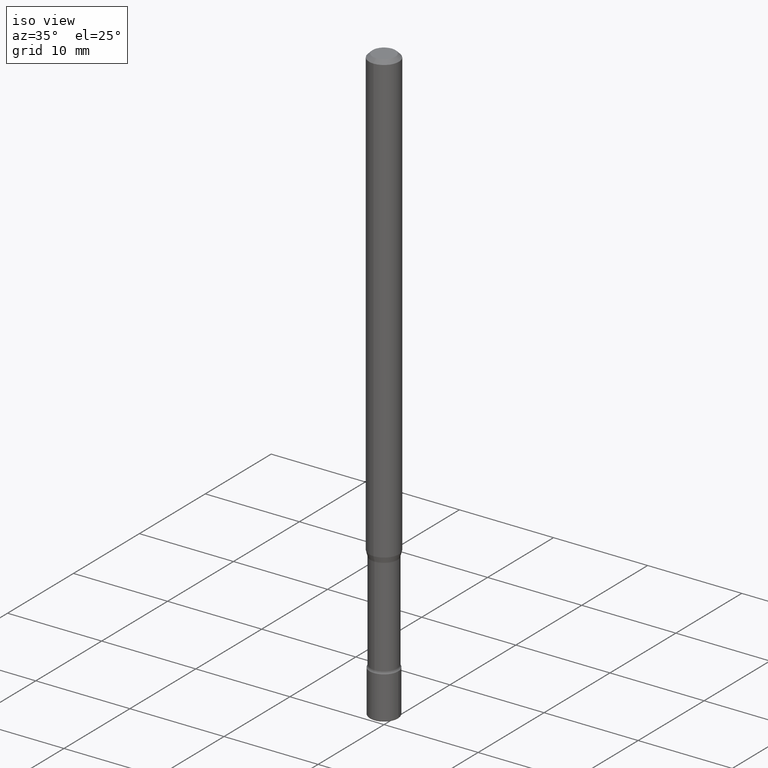
[diagram: clean part render]
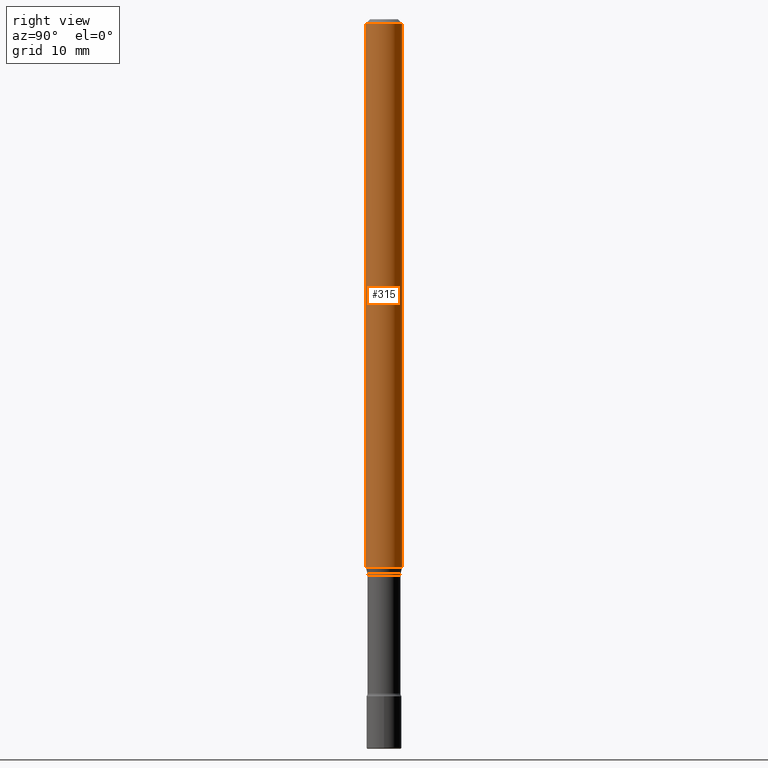
[diagram: tour spotlight — one face highlighted and labeled with its STEP entity id]
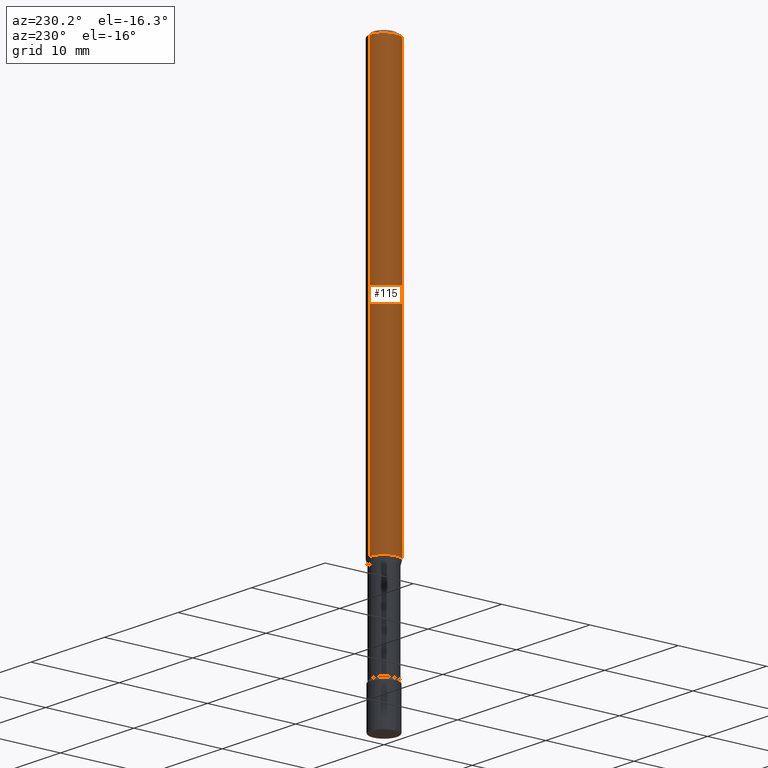
[diagram: tour spotlight — one face highlighted and labeled with its STEP entity id]
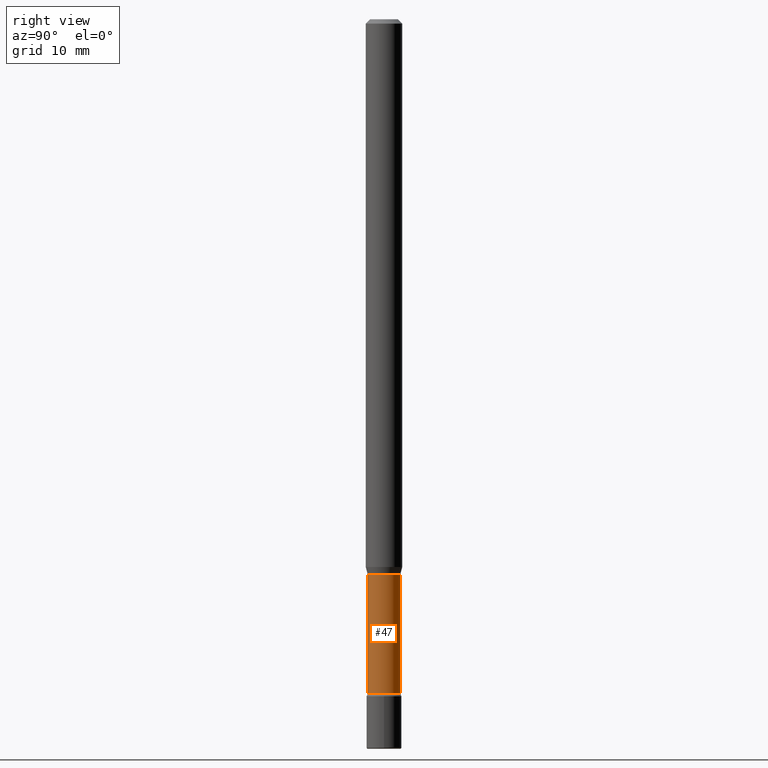
[diagram: tour spotlight — one face highlighted and labeled with its STEP entity id]
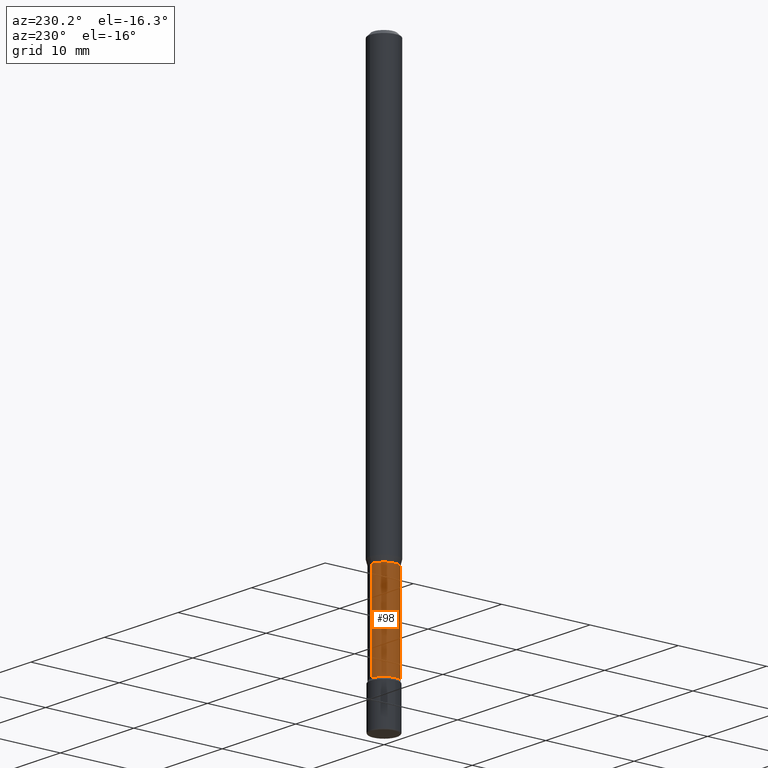
[diagram: tour spotlight — one face highlighted and labeled with its STEP entity id]
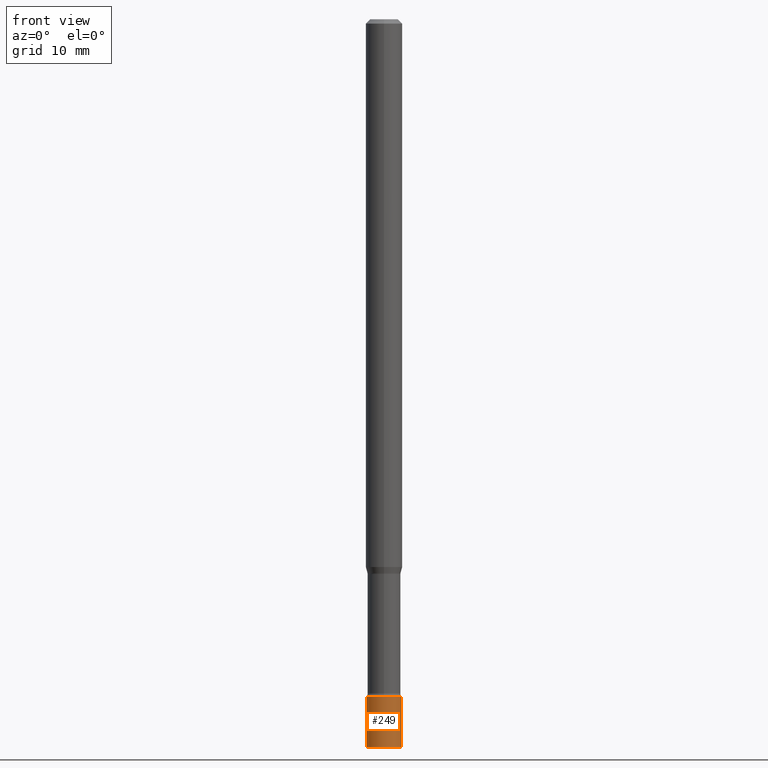
[diagram: tour spotlight — one face highlighted and labeled with its STEP entity id]
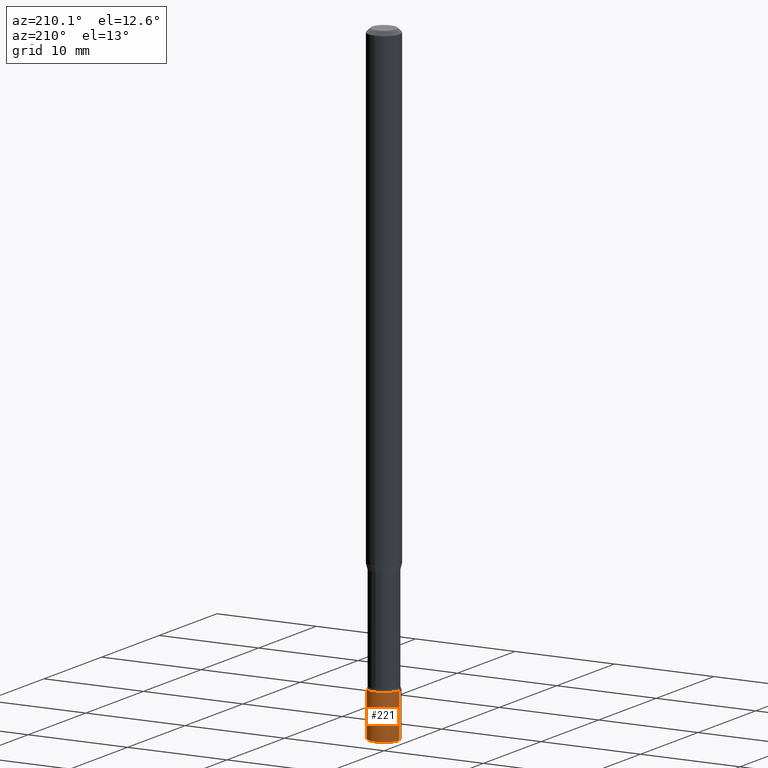
[diagram: tour spotlight — one face highlighted and labeled with its STEP entity id]
A machine part: a face-by-face anatomy tour. The part has 20 B-rep faces; the first image is the clean iso view, then the 6 largest visible faces are spotlighted one at a time (largest first), each with its STEP entity span.

Face 1 — right view, entity #315. In plain terms, the highlighted cylindrical surface (edge-blend (fillet) strip) has radius 1.5875 mm, axis along (-0, 0, 1).
Definition (entity closure, byte-faithful):
#16 = VERTEX_POINT ( 'NONE', #220 ) ;
#17 = DIRECTION ( 'NONE',  ( -2.445374119236681714E-29, 3.491616935942579411E-15, 1.000000000000000000 ) ) ;
#79 = DIRECTION ( 'NONE',  ( -2.445374119236681994E-29, 3.491616935942579411E-15, 1.000000000000000000 ) ) ;
#84 = AXIS2_PLACEMENT_3D ( 'NONE', #526, #290, #259 ) ;
#87 = ORIENTED_EDGE ( 'NONE', *, *, #383, .T. ) ;
#133 = EDGE_CURVE ( 'NONE', #16, #507, #299, .T. ) ;
#138 = CARTESIAN_POINT ( 'NONE',  ( 4.440892098501085673E-16, 0.06249999999999347050, -1.877234490073830253 ) ) ;
#156 = ORIENTED_EDGE ( 'NONE', *, *, #444, .F. ) ;
#173 = CARTESIAN_POINT ( 'NONE',  ( 4.440892098501086659E-16, 0.06249999999999993755, -0.01500000000000024578 ) ) ;
#210 = CYLINDRICAL_SURFACE ( 'NONE', #84, 0.06250000000000000000 ) ;
#214 = CARTESIAN_POINT ( 'NONE',  ( -4.364351673553456197E-16, -0.06250000000000653644, -1.877234490073829587 ) ) ;
#220 = CARTESIAN_POINT ( 'NONE',  ( -4.364351673553912750E-16, -0.06250000000000005551, -0.01499999999999981036 ) ) ;
#229 = VERTEX_POINT ( 'NONE', #214 ) ;
#239 = EDGE_LOOP ( 'NONE', ( #341, #87, #494, #156 ) ) ;
#259 = DIRECTION ( 'NONE',  ( -6.982962677686265922E-15, -1.000000000000000000, 3.491616935942578228E-15 ) ) ;
#261 = VECTOR ( 'NONE', #445, 39.37007874015748143 ) ;
#290 = DIRECTION ( 'NONE',  ( -2.445374119236681714E-29, 3.491616935942579411E-15, 1.000000000000000000 ) ) ;
#299 = CIRCLE ( 'NONE', #447, 0.06250000000000000000 ) ;
#310 = LINE ( 'NONE', #390, #389 ) ;
#315 = ADVANCED_FACE ( 'NONE', ( #339 ), #210, .T. ) ;
#328 = DIRECTION ( 'NONE',  ( -6.982962677686265922E-15, -1.000000000000000000, 3.483106191921935554E-15 ) ) ;
#339 = FACE_OUTER_BOUND ( 'NONE', #239, .T. ) ;
#341 = ORIENTED_EDGE ( 'NONE', *, *, #565, .T. ) ;
#382 = CIRCLE ( 'NONE', #506, 0.06250000000000000000 ) ;
#383 = EDGE_CURVE ( 'NONE', #570, #507, #449, .T. ) ;
#389 = VECTOR ( 'NONE', #79, 39.37007874015748143 ) ;
#390 = CARTESIAN_POINT ( 'NONE',  ( -4.364351673553916201E-16, -0.06250000000000000000, 6.962994573876572271E-16 ) ) ;
#444 = EDGE_CURVE ( 'NONE', #229, #16, #310, .T. ) ;
#445 = DIRECTION ( 'NONE',  ( -2.445374119236681994E-29, 3.491616935942579411E-15, 1.000000000000000000 ) ) ;
#447 = AXIS2_PLACEMENT_3D ( 'NONE', #458, #17, #328 ) ;
#449 = LINE ( 'NONE', #569, #261 ) ;
#458 = CARTESIAN_POINT ( 'NONE',  ( 3.668061178855029262E-31, -5.237425403913879570E-17, -0.01500000000000002720 ) ) ;
#460 = DIRECTION ( 'NONE',  ( -6.982962677686265922E-15, -1.000000000000000000, 4.370956789862821150E-15 ) ) ;
#466 = DIRECTION ( 'NONE',  ( -2.445374119236681714E-29, 3.491616935942579411E-15, 1.000000000000000000 ) ) ;
#494 = ORIENTED_EDGE ( 'NONE', *, *, #133, .F. ) ;
#506 = AXIS2_PLACEMENT_3D ( 'NONE', #509, #466, #460 ) ;
#507 = VERTEX_POINT ( 'NONE', #173 ) ;
#509 = CARTESIAN_POINT ( 'NONE',  ( 4.590540637765013865E-29, -6.554583738277316538E-15, -1.877234490073830031 ) ) ;
#526 = CARTESIAN_POINT ( 'NONE',  ( -1.169113584055446105E-44, 1.669184350826100908E-30, 4.780733988912460139E-16 ) ) ;
#565 = EDGE_CURVE ( 'NONE', #229, #570, #382, .T. ) ;
#569 = CARTESIAN_POINT ( 'NONE',  ( 4.440892098500625669E-16, 0.06250000000000000000, 2.598473403948348500E-16 ) ) ;
#570 = VERTEX_POINT ( 'NONE', #138 ) ;

Face 2 — auxiliary view, entity #115. In plain terms, the highlighted cylindrical surface (edge-blend (fillet) strip) has radius 1.5875 mm, axis along (-0, 0, 1).
Definition (entity closure, byte-faithful):
#4 = ORIENTED_EDGE ( 'NONE', *, *, #148, .T. ) ;
#6 = ORIENTED_EDGE ( 'NONE', *, *, #444, .T. ) ;
#13 = CARTESIAN_POINT ( 'NONE',  ( -1.169113584055446105E-44, 1.669184350826100908E-30, 4.780733988912460139E-16 ) ) ;
#16 = VERTEX_POINT ( 'NONE', #220 ) ;
#52 = DIRECTION ( 'NONE',  ( -6.982962677686265922E-15, -1.000000000000000000, 3.483106191921935554E-15 ) ) ;
#79 = DIRECTION ( 'NONE',  ( -2.445374119236681994E-29, 3.491616935942579411E-15, 1.000000000000000000 ) ) ;
#99 = DIRECTION ( 'NONE',  ( -2.445374119236681714E-29, 3.491616935942579411E-15, 1.000000000000000000 ) ) ;
#115 = ADVANCED_FACE ( 'NONE', ( #412 ), #149, .T. ) ;
#138 = CARTESIAN_POINT ( 'NONE',  ( 4.440892098501085673E-16, 0.06249999999999347050, -1.877234490073830253 ) ) ;
#148 = EDGE_CURVE ( 'NONE', #570, #229, #256, .T. ) ;
#149 = CYLINDRICAL_SURFACE ( 'NONE', #396, 0.06250000000000000000 ) ;
#152 = AXIS2_PLACEMENT_3D ( 'NONE', #198, #454, #52 ) ;
#173 = CARTESIAN_POINT ( 'NONE',  ( 4.440892098501086659E-16, 0.06249999999999993755, -0.01500000000000024578 ) ) ;
#187 = EDGE_CURVE ( 'NONE', #507, #16, #397, .T. ) ;
#188 = ORIENTED_EDGE ( 'NONE', *, *, #187, .F. ) ;
#198 = CARTESIAN_POINT ( 'NONE',  ( 3.668061178855029262E-31, -5.237425403913879570E-17, -0.01500000000000002720 ) ) ;
#201 = DIRECTION ( 'NONE',  ( -6.982962677686265922E-15, -1.000000000000000000, 3.491616935942578228E-15 ) ) ;
#204 = CARTESIAN_POINT ( 'NONE',  ( 4.590540637765013865E-29, -6.554583738277316538E-15, -1.877234490073830031 ) ) ;
#214 = CARTESIAN_POINT ( 'NONE',  ( -4.364351673553456197E-16, -0.06250000000000653644, -1.877234490073829587 ) ) ;
#220 = CARTESIAN_POINT ( 'NONE',  ( -4.364351673553912750E-16, -0.06250000000000005551, -0.01499999999999981036 ) ) ;
#229 = VERTEX_POINT ( 'NONE', #214 ) ;
#256 = CIRCLE ( 'NONE', #572, 0.06250000000000000000 ) ;
#261 = VECTOR ( 'NONE', #445, 39.37007874015748143 ) ;
#310 = LINE ( 'NONE', #390, #389 ) ;
#376 = DIRECTION ( 'NONE',  ( -2.445374119236681714E-29, 3.491616935942579411E-15, 1.000000000000000000 ) ) ;
#383 = EDGE_CURVE ( 'NONE', #570, #507, #449, .T. ) ;
#385 = EDGE_LOOP ( 'NONE', ( #401, #4, #6, #188 ) ) ;
#389 = VECTOR ( 'NONE', #79, 39.37007874015748143 ) ;
#390 = CARTESIAN_POINT ( 'NONE',  ( -4.364351673553916201E-16, -0.06250000000000000000, 6.962994573876572271E-16 ) ) ;
#396 = AXIS2_PLACEMENT_3D ( 'NONE', #13, #99, #201 ) ;
#397 = CIRCLE ( 'NONE', #152, 0.06250000000000000000 ) ;
#401 = ORIENTED_EDGE ( 'NONE', *, *, #383, .F. ) ;
#412 = FACE_OUTER_BOUND ( 'NONE', #385, .T. ) ;
#444 = EDGE_CURVE ( 'NONE', #229, #16, #310, .T. ) ;
#445 = DIRECTION ( 'NONE',  ( -2.445374119236681994E-29, 3.491616935942579411E-15, 1.000000000000000000 ) ) ;
#449 = LINE ( 'NONE', #569, #261 ) ;
#454 = DIRECTION ( 'NONE',  ( -2.445374119236681714E-29, 3.491616935942579411E-15, 1.000000000000000000 ) ) ;
#507 = VERTEX_POINT ( 'NONE', #173 ) ;
#549 = DIRECTION ( 'NONE',  ( -6.982962677686265922E-15, -1.000000000000000000, 4.370956789862821150E-15 ) ) ;
#569 = CARTESIAN_POINT ( 'NONE',  ( 4.440892098500625669E-16, 0.06250000000000000000, 2.598473403948348500E-16 ) ) ;
#570 = VERTEX_POINT ( 'NONE', #138 ) ;
#572 = AXIS2_PLACEMENT_3D ( 'NONE', #204, #376, #549 ) ;

Face 3 — right view, entity #47. In plain terms, the highlighted cylindrical surface (edge-blend (fillet) strip) has radius 1.4326 mm, axis along (-0, 0, 1).
Definition (entity closure, byte-faithful):
#2 = DIRECTION ( 'NONE',  ( -6.982962677686265922E-15, -1.000000000000000000, 4.843702116425999219E-15 ) ) ;
#35 = DIRECTION ( 'NONE',  ( -2.445374119236681714E-29, 3.491616935942579411E-15, 1.000000000000000000 ) ) ;
#41 = CARTESIAN_POINT ( 'NONE',  ( -3.938390950214588125E-16, -0.05640000000000663927, -1.901974787463810879 ) ) ;
#47 = ADVANCED_FACE ( 'NONE', ( #154 ), #415, .T. ) ;
#56 = VECTOR ( 'NONE', #186, 39.37007874015748143 ) ;
#60 = CARTESIAN_POINT ( 'NONE',  ( 5.649428380719043834E-29, -8.066512055288535170E-15, -2.310251153914436806 ) ) ;
#63 = EDGE_CURVE ( 'NONE', #399, #402, #361, .T. ) ;
#64 = CARTESIAN_POINT ( 'NONE',  ( -1.169113584055446105E-44, 1.669184350826100908E-30, 4.780733988912460139E-16 ) ) ;
#86 = CARTESIAN_POINT ( 'NONE',  ( 4.007461029686965452E-16, 0.05640000000000001262, 2.811462037040845346E-16 ) ) ;
#124 = DIRECTION ( 'NONE',  ( -2.445374119236681994E-29, 3.491616935942579411E-15, 1.000000000000000000 ) ) ;
#142 = ORIENTED_EDGE ( 'NONE', *, *, #484, .F. ) ;
#154 = FACE_OUTER_BOUND ( 'NONE', #230, .T. ) ;
#186 = DIRECTION ( 'NONE',  ( -2.445374119236681994E-29, 3.491616935942579411E-15, 1.000000000000000000 ) ) ;
#218 = AXIS2_PLACEMENT_3D ( 'NONE', #562, #35, #2 ) ;
#230 = EDGE_LOOP ( 'NONE', ( #492, #530, #472, #142 ) ) ;
#282 = VECTOR ( 'NONE', #124, 39.37007874015748143 ) ;
#303 = CARTESIAN_POINT ( 'NONE',  ( 4.135358722124349706E-16, 0.05639999999999196351, -2.310251153914437250 ) ) ;
#332 = DIRECTION ( 'NONE',  ( -2.445374119236681714E-29, 3.491616935942579411E-15, 1.000000000000000000 ) ) ;
#336 = AXIS2_PLACEMENT_3D ( 'NONE', #60, #547, #462 ) ;
#360 = VERTEX_POINT ( 'NONE', #523 ) ;
#361 = CIRCLE ( 'NONE', #336, 0.05640000000000002650 ) ;
#388 = CARTESIAN_POINT ( 'NONE',  ( -3.938390950214490997E-16, -0.05640000000000809643, -2.310251153914436806 ) ) ;
#399 = VERTEX_POINT ( 'NONE', #388 ) ;
#402 = VERTEX_POINT ( 'NONE', #303 ) ;
#415 = CYLINDRICAL_SURFACE ( 'NONE', #551, 0.05640000000000001262 ) ;
#419 = VERTEX_POINT ( 'NONE', #41 ) ;
#432 = EDGE_CURVE ( 'NONE', #419, #360, #448, .T. ) ;
#441 = LINE ( 'NONE', #495, #282 ) ;
#448 = CIRCLE ( 'NONE', #218, 0.05639999999999999181 ) ;
#462 = DIRECTION ( 'NONE',  ( -6.982962677686265922E-15, -1.000000000000000000, 4.843702116425996063E-15 ) ) ;
#472 = ORIENTED_EDGE ( 'NONE', *, *, #432, .F. ) ;
#484 = EDGE_CURVE ( 'NONE', #399, #419, #441, .T. ) ;
#490 = LINE ( 'NONE', #86, #56 ) ;
#492 = ORIENTED_EDGE ( 'NONE', *, *, #63, .T. ) ;
#495 = CARTESIAN_POINT ( 'NONE',  ( -3.938390950215054539E-16, -0.05640000000000001262, 6.750005940784075426E-16 ) ) ;
#523 = CARTESIAN_POINT ( 'NONE',  ( 4.007461029687529981E-16, 0.05639999999999335129, -1.901974787463811545 ) ) ;
#530 = ORIENTED_EDGE ( 'NONE', *, *, #541, .T. ) ;
#541 = EDGE_CURVE ( 'NONE', #402, #360, #490, .T. ) ;
#545 = DIRECTION ( 'NONE',  ( -6.982962677686265133E-15, -1.000000000000000000, 3.491616935942579411E-15 ) ) ;
#547 = DIRECTION ( 'NONE',  ( -2.445374119236681714E-29, 3.491616935942579411E-15, 1.000000000000000000 ) ) ;
#551 = AXIS2_PLACEMENT_3D ( 'NONE', #64, #332, #545 ) ;
#562 = CARTESIAN_POINT ( 'NONE',  ( 4.651039920704693219E-29, -6.640967379644431194E-15, -1.901974787463811323 ) ) ;

Face 4 — auxiliary view, entity #98. In plain terms, the highlighted cylindrical surface (edge-blend (fillet) strip) has radius 1.4326 mm, axis along (-0, 0, 1).
Definition (entity closure, byte-faithful):
#25 = DIRECTION ( 'NONE',  ( -2.445374119236681714E-29, 3.491616935942579411E-15, 1.000000000000000000 ) ) ;
#41 = CARTESIAN_POINT ( 'NONE',  ( -3.938390950214588125E-16, -0.05640000000000663927, -1.901974787463810879 ) ) ;
#56 = VECTOR ( 'NONE', #186, 39.37007874015748143 ) ;
#66 = AXIS2_PLACEMENT_3D ( 'NONE', #183, #171, #307 ) ;
#86 = CARTESIAN_POINT ( 'NONE',  ( 4.007461029686965452E-16, 0.05640000000000001262, 2.811462037040845346E-16 ) ) ;
#96 = ORIENTED_EDGE ( 'NONE', *, *, #484, .T. ) ;
#98 = ADVANCED_FACE ( 'NONE', ( #409 ), #511, .T. ) ;
#124 = DIRECTION ( 'NONE',  ( -2.445374119236681994E-29, 3.491616935942579411E-15, 1.000000000000000000 ) ) ;
#129 = ORIENTED_EDGE ( 'NONE', *, *, #463, .F. ) ;
#171 = DIRECTION ( 'NONE',  ( -2.445374119236681714E-29, 3.491616935942579411E-15, 1.000000000000000000 ) ) ;
#183 = CARTESIAN_POINT ( 'NONE',  ( 4.651039920704693219E-29, -6.640967379644431194E-15, -1.901974787463811323 ) ) ;
#186 = DIRECTION ( 'NONE',  ( -2.445374119236681994E-29, 3.491616935942579411E-15, 1.000000000000000000 ) ) ;
#191 = DIRECTION ( 'NONE',  ( -6.982962677686265133E-15, -1.000000000000000000, 3.491616935942579411E-15 ) ) ;
#238 = CIRCLE ( 'NONE', #66, 0.05639999999999999181 ) ;
#255 = AXIS2_PLACEMENT_3D ( 'NONE', #514, #25, #191 ) ;
#271 = AXIS2_PLACEMENT_3D ( 'NONE', #355, #346, #538 ) ;
#278 = ORIENTED_EDGE ( 'NONE', *, *, #469, .T. ) ;
#282 = VECTOR ( 'NONE', #124, 39.37007874015748143 ) ;
#303 = CARTESIAN_POINT ( 'NONE',  ( 4.135358722124349706E-16, 0.05639999999999196351, -2.310251153914437250 ) ) ;
#307 = DIRECTION ( 'NONE',  ( -6.982962677686265922E-15, -1.000000000000000000, 4.843702116425999219E-15 ) ) ;
#346 = DIRECTION ( 'NONE',  ( -2.445374119236681714E-29, 3.491616935942579411E-15, 1.000000000000000000 ) ) ;
#355 = CARTESIAN_POINT ( 'NONE',  ( 5.649428380719043834E-29, -8.066512055288535170E-15, -2.310251153914436806 ) ) ;
#360 = VERTEX_POINT ( 'NONE', #523 ) ;
#377 = EDGE_LOOP ( 'NONE', ( #543, #278, #96, #129 ) ) ;
#388 = CARTESIAN_POINT ( 'NONE',  ( -3.938390950214490997E-16, -0.05640000000000809643, -2.310251153914436806 ) ) ;
#399 = VERTEX_POINT ( 'NONE', #388 ) ;
#402 = VERTEX_POINT ( 'NONE', #303 ) ;
#409 = FACE_OUTER_BOUND ( 'NONE', #377, .T. ) ;
#419 = VERTEX_POINT ( 'NONE', #41 ) ;
#441 = LINE ( 'NONE', #495, #282 ) ;
#463 = EDGE_CURVE ( 'NONE', #360, #419, #238, .T. ) ;
#469 = EDGE_CURVE ( 'NONE', #402, #399, #527, .T. ) ;
#484 = EDGE_CURVE ( 'NONE', #399, #419, #441, .T. ) ;
#490 = LINE ( 'NONE', #86, #56 ) ;
#495 = CARTESIAN_POINT ( 'NONE',  ( -3.938390950215054539E-16, -0.05640000000000001262, 6.750005940784075426E-16 ) ) ;
#511 = CYLINDRICAL_SURFACE ( 'NONE', #255, 0.05640000000000001262 ) ;
#514 = CARTESIAN_POINT ( 'NONE',  ( -1.169113584055446105E-44, 1.669184350826100908E-30, 4.780733988912460139E-16 ) ) ;
#523 = CARTESIAN_POINT ( 'NONE',  ( 4.007461029687529981E-16, 0.05639999999999335129, -1.901974787463811545 ) ) ;
#527 = CIRCLE ( 'NONE', #271, 0.05640000000000002650 ) ;
#538 = DIRECTION ( 'NONE',  ( -6.982962677686265922E-15, -1.000000000000000000, 4.843702116425996063E-15 ) ) ;
#541 = EDGE_CURVE ( 'NONE', #402, #360, #490, .T. ) ;
#543 = ORIENTED_EDGE ( 'NONE', *, *, #541, .F. ) ;

Face 5 — front view, entity #249. In plain terms, the highlighted cylindrical surface (edge-blend (fillet) strip) has radius 1.524 mm, axis along (-0, 0, 1).
Definition (entity closure, byte-faithful):
#3 = EDGE_LOOP ( 'NONE', ( #312, #232, #455, #241 ) ) ;
#31 = AXIS2_PLACEMENT_3D ( 'NONE', #326, #500, #195 ) ;
#53 = VERTEX_POINT ( 'NONE', #371 ) ;
#78 = EDGE_CURVE ( 'NONE', #137, #53, #192, .T. ) ;
#107 = CARTESIAN_POINT ( 'NONE',  ( -0.05999999999999988676, -8.284920298957589417E-15, -2.495000000000000107 ) ) ;
#110 = CARTESIAN_POINT ( 'NONE',  ( -0.06000000000000001166, 4.263256414560601944E-16, -2.951361054152943763E-30 ) ) ;
#113 = CARTESIAN_POINT ( 'NONE',  ( 0.000000000000000000, 0.000000000000000000, 0.000000000000000000 ) ) ;
#118 = FACE_OUTER_BOUND ( 'NONE', #3, .T. ) ;
#130 = AXIS2_PLACEMENT_3D ( 'NONE', #113, #258, #213 ) ;
#137 = VERTEX_POINT ( 'NONE', #107 ) ;
#160 = EDGE_CURVE ( 'NONE', #227, #496, #418, .T. ) ;
#192 = CIRCLE ( 'NONE', #407, 0.06000000000000001166 ) ;
#195 = DIRECTION ( 'NONE',  ( 1.000000000000000000, -6.982962677686268288E-15, 0.000000000000000000 ) ) ;
#213 = DIRECTION ( 'NONE',  ( 1.000000000000000000, -6.982962677686266711E-15, 4.876176775795935793E-29 ) ) ;
#219 = CARTESIAN_POINT ( 'NONE',  ( 0.06000000000000001166, -4.189777606611760914E-16, 2.925706065477562106E-30 ) ) ;
#227 = VERTEX_POINT ( 'NONE', #521 ) ;
#232 = ORIENTED_EDGE ( 'NONE', *, *, #78, .T. ) ;
#241 = ORIENTED_EDGE ( 'NONE', *, *, #160, .F. ) ;
#242 = EDGE_CURVE ( 'NONE', #137, #227, #301, .T. ) ;
#246 = DIRECTION ( 'NONE',  ( 1.000000000000000000, -6.982962677686266711E-15, 0.000000000000000000 ) ) ;
#249 = ADVANCED_FACE ( 'NONE', ( #118 ), #479, .T. ) ;
#258 = DIRECTION ( 'NONE',  ( -2.445468806185136597E-29, 3.491481338843145583E-15, 1.000000000000000000 ) ) ;
#301 = LINE ( 'NONE', #110, #542 ) ;
#312 = ORIENTED_EDGE ( 'NONE', *, *, #242, .F. ) ;
#326 = CARTESIAN_POINT ( 'NONE',  ( 5.673487630349517039E-29, -8.100236706116098414E-15, -2.320000000000000284 ) ) ;
#348 = LINE ( 'NONE', #219, #438 ) ;
#371 = CARTESIAN_POINT ( 'NONE',  ( 0.05999999999999988676, -9.130223701074824963E-15, -2.495000000000000107 ) ) ;
#407 = AXIS2_PLACEMENT_3D ( 'NONE', #471, #505, #246 ) ;
#418 = CIRCLE ( 'NONE', #31, 0.05999999999999999778 ) ;
#438 = VECTOR ( 'NONE', #531, 39.37007874015748143 ) ;
#455 = ORIENTED_EDGE ( 'NONE', *, *, #518, .T. ) ;
#471 = CARTESIAN_POINT ( 'NONE',  ( 6.101444671431915719E-29, -8.711245940413648329E-15, -2.495000000000000107 ) ) ;
#479 = CYLINDRICAL_SURFACE ( 'NONE', #130, 0.06000000000000001166 ) ;
#485 = CARTESIAN_POINT ( 'NONE',  ( 0.05999999999999999778, -8.519214466777275048E-15, -2.320000000000000284 ) ) ;
#496 = VERTEX_POINT ( 'NONE', #485 ) ;
#500 = DIRECTION ( 'NONE',  ( -2.445468806185136597E-29, 3.491481338843145583E-15, 1.000000000000000000 ) ) ;
#505 = DIRECTION ( 'NONE',  ( -2.445468806185136597E-29, 3.491481338843145583E-15, 1.000000000000000000 ) ) ;
#518 = EDGE_CURVE ( 'NONE', #53, #496, #348, .T. ) ;
#521 = CARTESIAN_POINT ( 'NONE',  ( -0.05999999999999999778, -7.979415681808812882E-15, -2.320000000000000284 ) ) ;
#524 = DIRECTION ( 'NONE',  ( -2.445468806185136877E-29, 3.491481338843145188E-15, 1.000000000000000000 ) ) ;
#531 = DIRECTION ( 'NONE',  ( -2.445468806185136877E-29, 3.491481338843145188E-15, 1.000000000000000000 ) ) ;
#542 = VECTOR ( 'NONE', #524, 39.37007874015748143 ) ;

Face 6 — auxiliary view, entity #221. In plain terms, the highlighted cylindrical surface (edge-blend (fillet) strip) has radius 1.524 mm, axis along (-0, 0, 1).
Definition (entity closure, byte-faithful):
#9 = AXIS2_PLACEMENT_3D ( 'NONE', #486, #393, #175 ) ;
#24 = CIRCLE ( 'NONE', #9, 0.06000000000000001166 ) ;
#30 = CYLINDRICAL_SURFACE ( 'NONE', #362, 0.06000000000000001166 ) ;
#34 = DIRECTION ( 'NONE',  ( 1.000000000000000000, -6.982962677686266711E-15, 4.876176775795935793E-29 ) ) ;
#46 = AXIS2_PLACEMENT_3D ( 'NONE', #135, #48, #353 ) ;
#48 = DIRECTION ( 'NONE',  ( -2.445468806185136597E-29, 3.491481338843145583E-15, 1.000000000000000000 ) ) ;
#53 = VERTEX_POINT ( 'NONE', #371 ) ;
#61 = EDGE_LOOP ( 'NONE', ( #450, #540, #394, #69 ) ) ;
#69 = ORIENTED_EDGE ( 'NONE', *, *, #518, .F. ) ;
#107 = CARTESIAN_POINT ( 'NONE',  ( -0.05999999999999988676, -8.284920298957589417E-15, -2.495000000000000107 ) ) ;
#110 = CARTESIAN_POINT ( 'NONE',  ( -0.06000000000000001166, 4.263256414560601944E-16, -2.951361054152943763E-30 ) ) ;
#135 = CARTESIAN_POINT ( 'NONE',  ( 5.673487630349517039E-29, -8.100236706116098414E-15, -2.320000000000000284 ) ) ;
#137 = VERTEX_POINT ( 'NONE', #107 ) ;
#165 = DIRECTION ( 'NONE',  ( -2.445468806185136597E-29, 3.491481338843145583E-15, 1.000000000000000000 ) ) ;
#175 = DIRECTION ( 'NONE',  ( 1.000000000000000000, -6.982962677686266711E-15, 0.000000000000000000 ) ) ;
#219 = CARTESIAN_POINT ( 'NONE',  ( 0.06000000000000001166, -4.189777606611760914E-16, 2.925706065477562106E-30 ) ) ;
#221 = ADVANCED_FACE ( 'NONE', ( #483 ), #30, .T. ) ;
#227 = VERTEX_POINT ( 'NONE', #521 ) ;
#242 = EDGE_CURVE ( 'NONE', #137, #227, #301, .T. ) ;
#301 = LINE ( 'NONE', #110, #542 ) ;
#318 = CIRCLE ( 'NONE', #46, 0.05999999999999999778 ) ;
#348 = LINE ( 'NONE', #219, #438 ) ;
#353 = DIRECTION ( 'NONE',  ( 1.000000000000000000, -6.982962677686268288E-15, 0.000000000000000000 ) ) ;
#362 = AXIS2_PLACEMENT_3D ( 'NONE', #559, #165, #34 ) ;
#371 = CARTESIAN_POINT ( 'NONE',  ( 0.05999999999999988676, -9.130223701074824963E-15, -2.495000000000000107 ) ) ;
#393 = DIRECTION ( 'NONE',  ( -2.445468806185136597E-29, 3.491481338843145583E-15, 1.000000000000000000 ) ) ;
#394 = ORIENTED_EDGE ( 'NONE', *, *, #404, .F. ) ;
#404 = EDGE_CURVE ( 'NONE', #496, #227, #318, .T. ) ;
#438 = VECTOR ( 'NONE', #531, 39.37007874015748143 ) ;
#450 = ORIENTED_EDGE ( 'NONE', *, *, #451, .T. ) ;
#451 = EDGE_CURVE ( 'NONE', #53, #137, #24, .T. ) ;
#483 = FACE_OUTER_BOUND ( 'NONE', #61, .T. ) ;
#485 = CARTESIAN_POINT ( 'NONE',  ( 0.05999999999999999778, -8.519214466777275048E-15, -2.320000000000000284 ) ) ;
#486 = CARTESIAN_POINT ( 'NONE',  ( 6.101444671431915719E-29, -8.711245940413648329E-15, -2.495000000000000107 ) ) ;
#496 = VERTEX_POINT ( 'NONE', #485 ) ;
#518 = EDGE_CURVE ( 'NONE', #53, #496, #348, .T. ) ;
#521 = CARTESIAN_POINT ( 'NONE',  ( -0.05999999999999999778, -7.979415681808812882E-15, -2.320000000000000284 ) ) ;
#524 = DIRECTION ( 'NONE',  ( -2.445468806185136877E-29, 3.491481338843145188E-15, 1.000000000000000000 ) ) ;
#531 = DIRECTION ( 'NONE',  ( -2.445468806185136877E-29, 3.491481338843145188E-15, 1.000000000000000000 ) ) ;
#540 = ORIENTED_EDGE ( 'NONE', *, *, #242, .T. ) ;
#542 = VECTOR ( 'NONE', #524, 39.37007874015748143 ) ;
#559 = CARTESIAN_POINT ( 'NONE',  ( 0.000000000000000000, 0.000000000000000000, 0.000000000000000000 ) ) ;